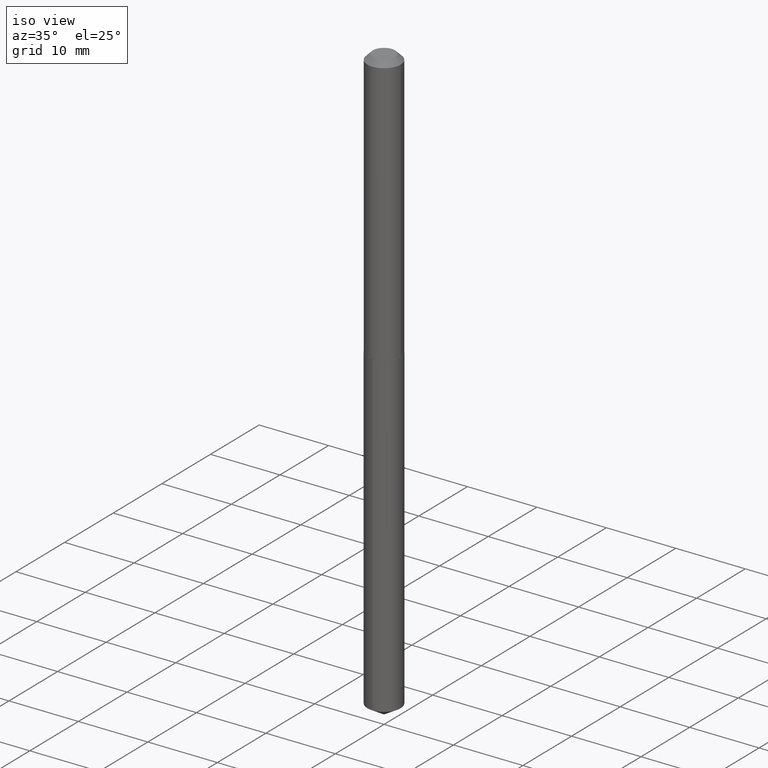
[diagram: clean part render]
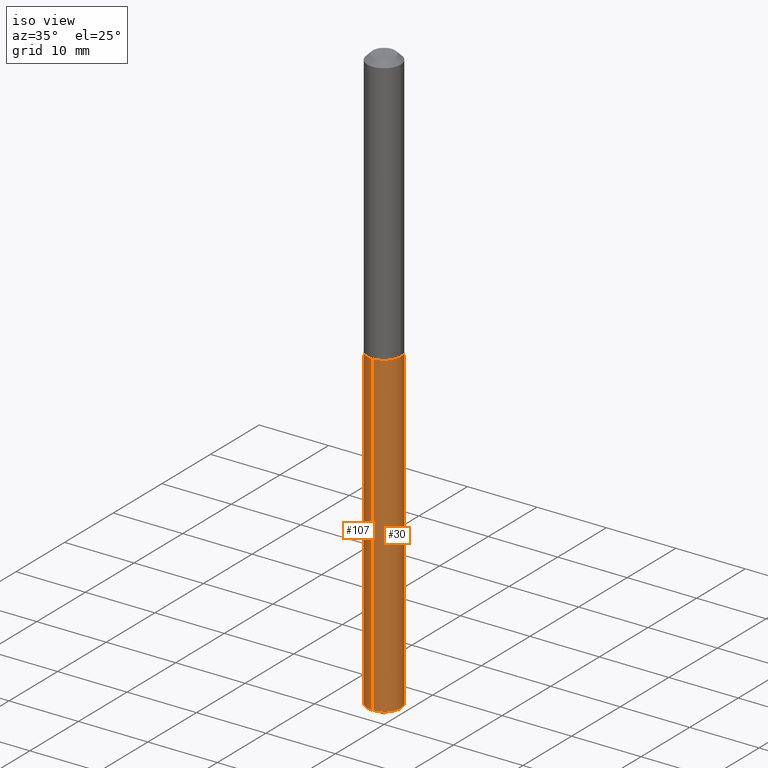
[diagram: same view with one multi-face feature highlighted, each face labeled with its STEP entity id]
A machine part, iso view. The highlighted faces form ONE feature: a constant-radius fillet chain: 2 tangent blend faces with common blend radius 2.4003 mm. The faces share edges in the B-rep.
Their STEP definitions:
[1] entity #107 (Cylinder):
#6 = CARTESIAN_POINT ( 'NONE',  ( -6.598899730412707621E-16, -0.09450000000001163025, -3.329018671501895899 ) ) ;
#17 = EDGE_CURVE ( 'NONE', #205, #374, #71, .T. ) ;
#23 = VERTEX_POINT ( 'NONE', #6 ) ;
#33 = CARTESIAN_POINT ( 'NONE',  ( 6.714628852933318555E-16, 0.09449999999999467160, -1.527600000000000291 ) ) ;
#36 = LINE ( 'NONE', #33, #173 ) ;
#49 = ORIENTED_EDGE ( 'NONE', *, *, #146, .T. ) ;
#53 = FACE_OUTER_BOUND ( 'NONE', #157, .T. ) ;
#65 = DIRECTION ( 'NONE',  ( -2.445448111786828198E-29, 3.491510974399375143E-15, 1.000000000000000000 ) ) ;
#69 = CARTESIAN_POINT ( 'NONE',  ( 8.140974037090264313E-29, -1.162325995425360295E-14, -3.329018671501896343 ) ) ;
#71 = CIRCLE ( 'NONE', #162, 0.09449999999999998679 ) ;
#79 = AXIS2_PLACEMENT_3D ( 'NONE', #281, #65, #307 ) ;
#100 = CARTESIAN_POINT ( 'NONE',  ( 6.714628852933765247E-16, 0.09449999999999468547, -1.527600000000000291 ) ) ;
#101 = DIRECTION ( 'NONE',  ( -6.982962677686265922E-15, -1.000000000000000000, 5.781688875479922944E-15 ) ) ;
#104 = VECTOR ( 'NONE', #285, 39.37007874015748143 ) ;
#107 = ADVANCED_FACE ( 'NONE', ( #53 ), #183, .T. ) ;
#112 = EDGE_CURVE ( 'NONE', #23, #374, #221, .T. ) ;
#127 = CARTESIAN_POINT ( 'NONE',  ( 6.714628852933759331E-16, 0.09449999999998837108, -3.329018671501897231 ) ) ;
#130 = EDGE_CURVE ( 'NONE', #314, #205, #36, .T. ) ;
#134 = DIRECTION ( 'NONE',  ( -2.445448111786828198E-29, 3.491510974399375143E-15, 1.000000000000000000 ) ) ;
#146 = EDGE_CURVE ( 'NONE', #314, #23, #222, .T. ) ;
#157 = EDGE_LOOP ( 'NONE', ( #295, #49, #351, #371 ) ) ;
#162 = AXIS2_PLACEMENT_3D ( 'NONE', #260, #336, #342 ) ;
#173 = VECTOR ( 'NONE', #254, 39.37007874015748143 ) ;
#183 = CYLINDRICAL_SURFACE ( 'NONE', #79, 0.09449999999999998679 ) ;
#205 = VERTEX_POINT ( 'NONE', #100 ) ;
#221 = LINE ( 'NONE', #335, #104 ) ;
#222 = CIRCLE ( 'NONE', #289, 0.09449999999999998679 ) ;
#254 = DIRECTION ( 'NONE',  ( -2.445448111786828198E-29, 3.491510974399375143E-15, 1.000000000000000000 ) ) ;
#260 = CARTESIAN_POINT ( 'NONE',  ( 3.735698148328414869E-29, -5.333586893216789907E-15, -1.527600000000000069 ) ) ;
#281 = CARTESIAN_POINT ( 'NONE',  ( 3.735698148328414869E-29, -5.333586893216789907E-15, -1.527600000000000069 ) ) ;
#285 = DIRECTION ( 'NONE',  ( -2.445448111786828198E-29, 3.491510974399375143E-15, 1.000000000000000000 ) ) ;
#289 = AXIS2_PLACEMENT_3D ( 'NONE', #69, #134, #101 ) ;
#295 = ORIENTED_EDGE ( 'NONE', *, *, #130, .F. ) ;
#307 = DIRECTION ( 'NONE',  ( -6.982962677686265922E-15, -1.000000000000000000, 2.890844437739961472E-15 ) ) ;
#314 = VERTEX_POINT ( 'NONE', #127 ) ;
#335 = CARTESIAN_POINT ( 'NONE',  ( -6.598899730413146425E-16, -0.09450000000000531586, -1.527599999999999847 ) ) ;
#336 = DIRECTION ( 'NONE',  ( -2.445448111786828198E-29, 3.491510974399375143E-15, 1.000000000000000000 ) ) ;
#342 = DIRECTION ( 'NONE',  ( -6.982962677686265922E-15, -1.000000000000000000, 2.890844437739961472E-15 ) ) ;
#351 = ORIENTED_EDGE ( 'NONE', *, *, #112, .T. ) ;
#355 = CARTESIAN_POINT ( 'NONE',  ( -6.598899730413146425E-16, -0.09450000000000531586, -1.527599999999999847 ) ) ;
#371 = ORIENTED_EDGE ( 'NONE', *, *, #17, .F. ) ;
#374 = VERTEX_POINT ( 'NONE', #355 ) ;
[2] entity #30 (Cylinder):
#6 = CARTESIAN_POINT ( 'NONE',  ( -6.598899730412707621E-16, -0.09450000000001163025, -3.329018671501895899 ) ) ;
#23 = VERTEX_POINT ( 'NONE', #6 ) ;
#30 = ADVANCED_FACE ( 'NONE', ( #201 ), #256, .T. ) ;
#33 = CARTESIAN_POINT ( 'NONE',  ( 6.714628852933318555E-16, 0.09449999999999467160, -1.527600000000000291 ) ) ;
#36 = LINE ( 'NONE', #33, #173 ) ;
#57 = AXIS2_PLACEMENT_3D ( 'NONE', #126, #326, #159 ) ;
#91 = CIRCLE ( 'NONE', #57, 0.09449999999999998679 ) ;
#97 = EDGE_CURVE ( 'NONE', #23, #314, #91, .T. ) ;
#100 = CARTESIAN_POINT ( 'NONE',  ( 6.714628852933765247E-16, 0.09449999999999468547, -1.527600000000000291 ) ) ;
#104 = VECTOR ( 'NONE', #285, 39.37007874015748143 ) ;
#112 = EDGE_CURVE ( 'NONE', #23, #374, #221, .T. ) ;
#126 = CARTESIAN_POINT ( 'NONE',  ( 8.140974037090264313E-29, -1.162325995425360295E-14, -3.329018671501896343 ) ) ;
#127 = CARTESIAN_POINT ( 'NONE',  ( 6.714628852933759331E-16, 0.09449999999998837108, -3.329018671501897231 ) ) ;
#130 = EDGE_CURVE ( 'NONE', #314, #205, #36, .T. ) ;
#143 = CIRCLE ( 'NONE', #323, 0.09449999999999998679 ) ;
#159 = DIRECTION ( 'NONE',  ( -6.982962677686265922E-15, -1.000000000000000000, 5.781688875479922944E-15 ) ) ;
#164 = CARTESIAN_POINT ( 'NONE',  ( 3.735698148328414869E-29, -5.333586893216789907E-15, -1.527600000000000069 ) ) ;
#166 = EDGE_LOOP ( 'NONE', ( #387, #252, #379, #219 ) ) ;
#173 = VECTOR ( 'NONE', #254, 39.37007874015748143 ) ;
#201 = FACE_OUTER_BOUND ( 'NONE', #166, .T. ) ;
#205 = VERTEX_POINT ( 'NONE', #100 ) ;
#209 = EDGE_CURVE ( 'NONE', #374, #205, #143, .T. ) ;
#219 = ORIENTED_EDGE ( 'NONE', *, *, #112, .F. ) ;
#221 = LINE ( 'NONE', #335, #104 ) ;
#225 = DIRECTION ( 'NONE',  ( -2.445448111786828198E-29, 3.491510974399375143E-15, 1.000000000000000000 ) ) ;
#226 = DIRECTION ( 'NONE',  ( -2.445448111786828198E-29, 3.491510974399375143E-15, 1.000000000000000000 ) ) ;
#232 = DIRECTION ( 'NONE',  ( -6.982962677686265922E-15, -1.000000000000000000, 2.890844437739961472E-15 ) ) ;
#252 = ORIENTED_EDGE ( 'NONE', *, *, #130, .T. ) ;
#254 = DIRECTION ( 'NONE',  ( -2.445448111786828198E-29, 3.491510974399375143E-15, 1.000000000000000000 ) ) ;
#256 = CYLINDRICAL_SURFACE ( 'NONE', #282, 0.09449999999999998679 ) ;
#282 = AXIS2_PLACEMENT_3D ( 'NONE', #164, #226, #338 ) ;
#285 = DIRECTION ( 'NONE',  ( -2.445448111786828198E-29, 3.491510974399375143E-15, 1.000000000000000000 ) ) ;
#314 = VERTEX_POINT ( 'NONE', #127 ) ;
#323 = AXIS2_PLACEMENT_3D ( 'NONE', #370, #225, #232 ) ;
#326 = DIRECTION ( 'NONE',  ( -2.445448111786828198E-29, 3.491510974399375143E-15, 1.000000000000000000 ) ) ;
#335 = CARTESIAN_POINT ( 'NONE',  ( -6.598899730413146425E-16, -0.09450000000000531586, -1.527599999999999847 ) ) ;
#338 = DIRECTION ( 'NONE',  ( -6.982962677686265922E-15, -1.000000000000000000, 2.890844437739961472E-15 ) ) ;
#355 = CARTESIAN_POINT ( 'NONE',  ( -6.598899730413146425E-16, -0.09450000000000531586, -1.527599999999999847 ) ) ;
#370 = CARTESIAN_POINT ( 'NONE',  ( 3.735698148328414869E-29, -5.333586893216789907E-15, -1.527600000000000069 ) ) ;
#374 = VERTEX_POINT ( 'NONE', #355 ) ;
#379 = ORIENTED_EDGE ( 'NONE', *, *, #209, .F. ) ;
#387 = ORIENTED_EDGE ( 'NONE', *, *, #97, .T. ) ;